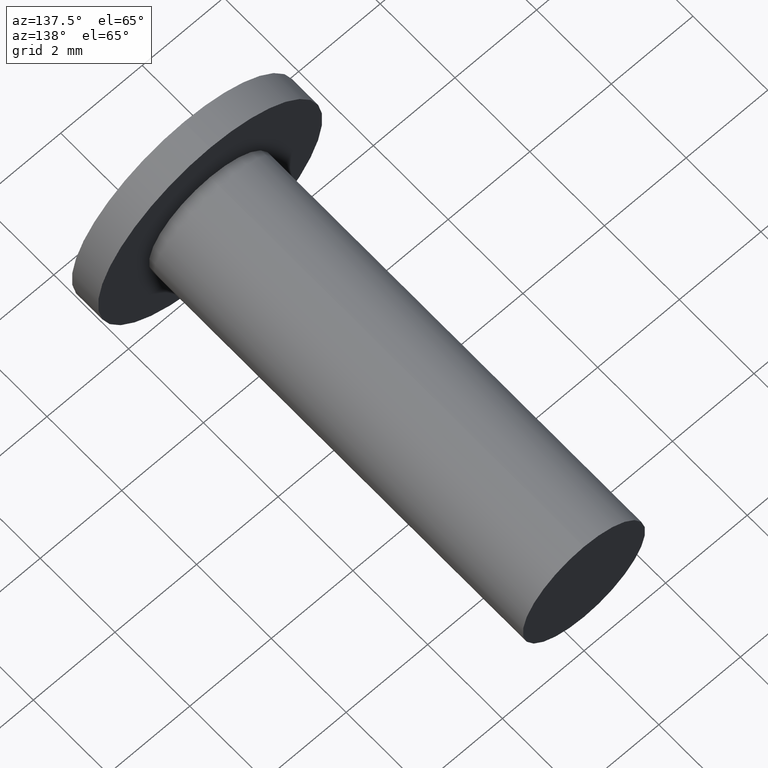
[diagram: clean part render]
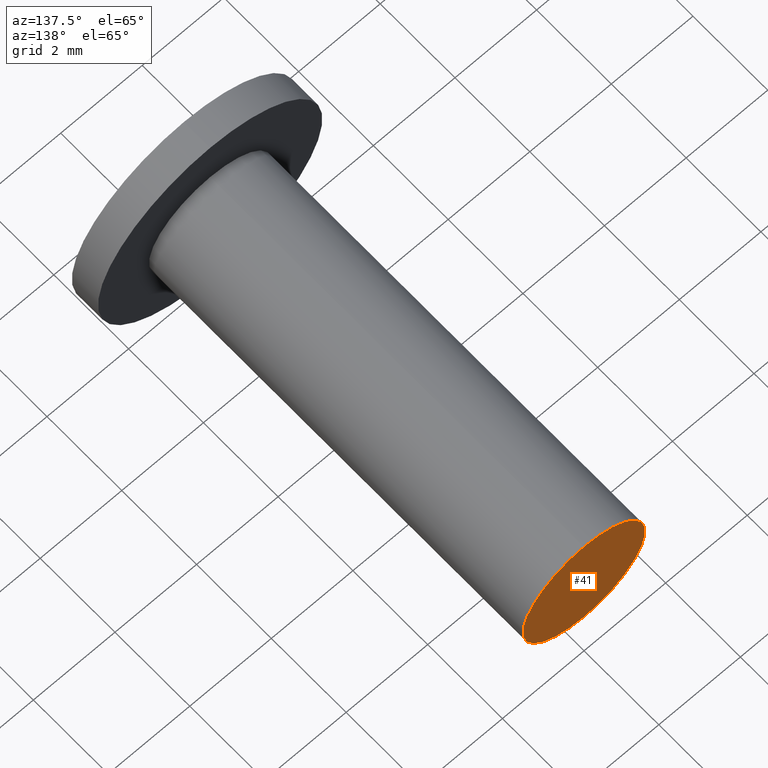
[diagram: same view with one face highlighted and labeled with its STEP entity id]
A machine part, auxiliary view. The second image highlights one B-rep face of the part: STEP entity #41.
In plain terms, the highlighted planar face has unit normal (0, -1, 0).
Its self-contained STEP definition (entity closure, byte-faithful):
#41=ADVANCED_FACE('',(#80),#79,.F.);
#79=PLANE('',#369);
#80=FACE_OUTER_BOUND('',#370,.T.);
#366=CARTESIAN_POINT('',(-3.11769145363E+00,1.00000000000E+01,3.45000000000E+00));
#367=DIRECTION('',(0.00000000000E+00,-1.00000000000E+00,0.00000000000E+00));
#368=DIRECTION('',(0.00000000000E+00,0.00000000000E+00,-1.00000000000E+00));
#369=AXIS2_PLACEMENT_3D('',#366,#367,#368);
#370=EDGE_LOOP('',(#531,#532));
#531=ORIENTED_EDGE('',*,*,#667,.F.);
#532=ORIENTED_EDGE('',*,*,#668,.F.);
#667=EDGE_CURVE('',#753,#754,#755,.T.);
#668=EDGE_CURVE('',#754,#753,#761,.T.);
#753=VERTEX_POINT('',#1196);
#754=VERTEX_POINT('',#1197);
#755=CIRCLE('',#1201,1.50000000000E+00);
#761=CIRCLE('',#1205,1.50000000000E+00);
#1196=CARTESIAN_POINT('',(-7.40148683083E-17,1.00000000000E+01,1.50000000000E+00));
#1197=CARTESIAN_POINT('',(0.00000000000E+00,1.00000000000E+01,-1.50000000000E+00));
#1198=CARTESIAN_POINT('',(0.00000000000E+00,1.00000000000E+01,0.00000000000E+00));
#1199=DIRECTION('',(0.00000000000E+00,-1.00000000000E+00,-0.00000000000E+00));
#1200=DIRECTION('',(-1.22460635382E-16,0.00000000000E+00,-1.00000000000E+00));
#1201=AXIS2_PLACEMENT_3D('',#1198,#1199,#1200);
#1202=CARTESIAN_POINT('',(0.00000000000E+00,1.00000000000E+01,0.00000000000E+00));
#1203=DIRECTION('',(0.00000000000E+00,-1.00000000000E+00,-0.00000000000E+00));
#1204=DIRECTION('',(-1.22460635382E-16,0.00000000000E+00,-1.00000000000E+00));
#1205=AXIS2_PLACEMENT_3D('',#1202,#1203,#1204);